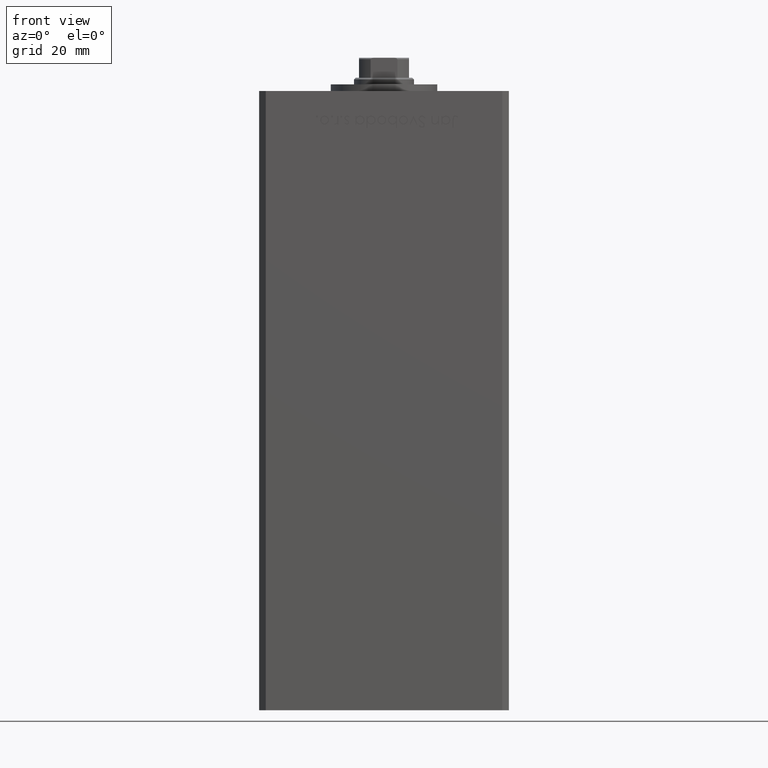
[diagram: clean part render]
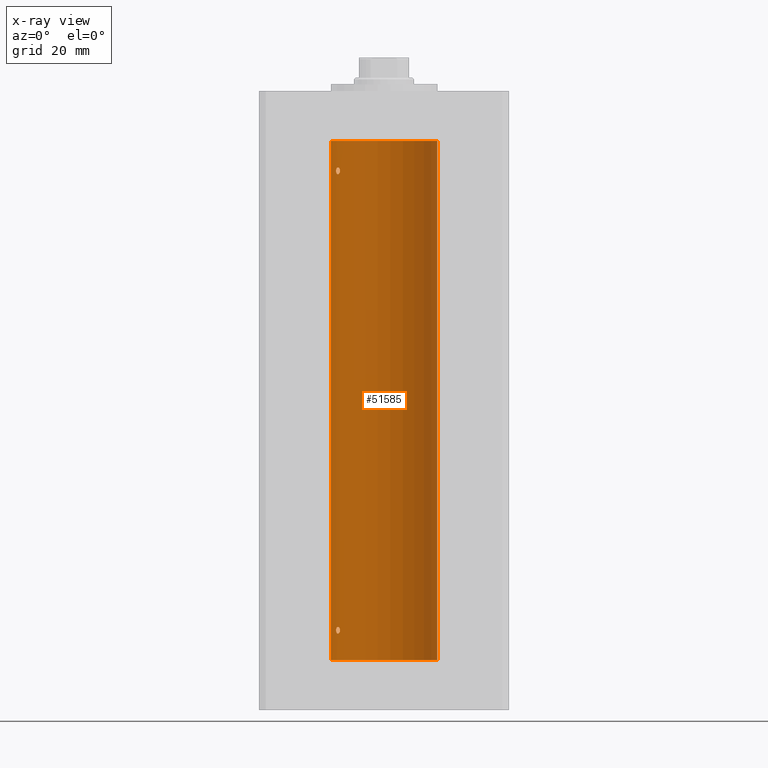
[diagram: x-ray — body ghosted, one internal face saturated and labeled with its STEP entity id]
A machine part, front view, then the same camera in x-ray: the body is ghosted and one INTERNAL B-rep face — a face not visible from any outside direction — is saturated and labeled: STEP entity #51585.
In plain terms, the highlighted cylindrical surface (partial cylindrical patch) has radius 16 mm, axis along (-0, -0, -1).
Its self-contained STEP definition (entity closure, byte-faithful):
#340 = CARTESIAN_POINT ( 'NONE',  ( -13.98699950016872151, 7.770591669637119558, 8.018476816648481886 ) ) ;
#353 = VERTEX_POINT ( 'NONE', #2799 ) ;
#684 = VERTEX_POINT ( 'NONE', #44339 ) ;
#802 = DIRECTION ( 'NONE',  ( -0.000000000000000000, -0.000000000000000000, -1.000000000000000000 ) ) ;
#826 = EDGE_CURVE ( 'NONE', #10309, #353, #33512, .T. ) ;
#871 = CARTESIAN_POINT ( 'NONE',  ( -14.38749456993815556, 6.999999999999997335, 8.857147409635411250 ) ) ;
#1015 = CARTESIAN_POINT ( 'NONE',  ( -14.31650799088418147, 7.144337649771908438, 147.5355226273736946 ) ) ;
#1268 = CARTESIAN_POINT ( 'NONE',  ( -13.70792461986390798, 8.256614593260307444, 147.9966215356423334 ) ) ;
#1714 = EDGE_CURVE ( 'NONE', #43256, #34754, #34140, .T. ) ;
#1774 = CARTESIAN_POINT ( 'NONE',  ( -13.32457971225032622, 8.857769707964648020, 147.5319996627465855 ) ) ;
#1960 = EDGE_LOOP ( 'NONE', ( #26765, #45407, #18020, #8762 ) ) ;
#2799 = CARTESIAN_POINT ( 'NONE',  ( 16.00000000000000000, 1.959434878635765131E-15, 0.000000000000000000 ) ) ;
#3520 = EDGE_LOOP ( 'NONE', ( #10348, #12182 ) ) ;
#3579 = CARTESIAN_POINT ( 'NONE',  ( -14.37227256866306213, 7.031482256185707769, 9.284457240976479397 ) ) ;
#3871 = CARTESIAN_POINT ( 'NONE',  ( -13.22875655532295802, 8.999999999999996447, 147.0000000000000284 ) ) ;
#4043 = CARTESIAN_POINT ( 'NONE',  ( -14.17528142432533755, 7.421143801852455368, 8.173943073538659121 ) ) ;
#4450 = DIRECTION ( 'NONE',  ( -1.000000000000000000, 0.000000000000000000, 0.000000000000000000 ) ) ;
#5997 = CARTESIAN_POINT ( 'NONE',  ( -13.24976519864029179, 8.969293778684573226, 147.2815352263351940 ) ) ;
#7533 = CARTESIAN_POINT ( 'NONE',  ( -14.11618354197461400, 7.533333301880478672, 9.893207651933416003 ) ) ;
#7803 = CARTESIAN_POINT ( 'NONE',  ( -13.91892506969882959, 7.891973478508852224, 10.00155212263243953 ) ) ;
#8762 = ORIENTED_EDGE ( 'NONE', *, *, #21016, .F. ) ;
#9819 = B_SPLINE_CURVE_WITH_KNOTS ( 'NONE', 3,
 ( #26329, #46110, #18935, #35024, #13683, #45859, #17904, #9974, #51331, #11791, #47401, #40001, #35545, #19187, #15229, #43977, #39477, #47138, #27356, #3871 ),
 .UNSPECIFIED., .F., .F.,
 ( 4, 2, 2, 2, 2, 2, 2, 2, 2, 4 ),
 ( 0.000000000000000000, 0.0004222090241339633240, 0.0008444180482679266480, 0.001266627072401889809, 0.001688836096535853296, 0.002111045120669816783, 0.002533254144803779619, 0.002955463168937742888, 0.003166567681004761603, 0.003377672193071779884 ),
 .UNSPECIFIED. ) ;
#9974 = CARTESIAN_POINT ( 'NONE',  ( -13.98699950016872151, 7.770591669637114229, 146.0184768166484446 ) ) ;
#10133 = EDGE_CURVE ( 'NONE', #34754, #43256, #12022, .T. ) ;
#10309 = VERTEX_POINT ( 'NONE', #18309 ) ;
#10348 = ORIENTED_EDGE ( 'NONE', *, *, #1714, .F. ) ;
#10655 = VECTOR ( 'NONE', #42851, 1000.000000000000000 ) ;
#10678 = CARTESIAN_POINT ( 'NONE',  ( -16.00000000000000000, 0.000000000000000000, 156.0000000000000000 ) ) ;
#11493 = CARTESIAN_POINT ( 'NONE',  ( -13.55800260393082546, 8.498809056167521803, 9.903643446210175227 ) ) ;
#11791 = CARTESIAN_POINT ( 'NONE',  ( -13.77582987033440709, 8.139210687602719929, 146.0021105458418447 ) ) ;
#11975 = CARTESIAN_POINT ( 'NONE',  ( -13.70481462797718031, 8.258098555717506173, 8.025997477291133109 ) ) ;
#12022 = B_SPLINE_CURVE_WITH_KNOTS ( 'NONE', 3,
 ( #23615, #27316, #15453, #32062, #23106, #11493, #31543, #7803, #27840, #7533, #12280, #39702, #48136, #3579, #19674, #35764 ),
 .UNSPECIFIED., .F., .F.,
 ( 4, 2, 2, 2, 2, 2, 2, 4 ),
 ( 0.003377672193071777282, 0.003799209865779874882, 0.004220747538487972482, 0.005063822883904168549, 0.005485360556612268318, 0.005906898229320367219, 0.006328435902028466120, 0.006749973574736565889 ),
 .UNSPECIFIED. ) ;
#12182 = ORIENTED_EDGE ( 'NONE', *, *, #10133, .F. ) ;
#12280 = CARTESIAN_POINT ( 'NONE',  ( -14.17576283486774535, 7.420212263225985261, 9.825253034304354927 ) ) ;
#12375 = FACE_BOUND ( 'NONE', #3520, .T. ) ;
#12379 = EDGE_CURVE ( 'NONE', #684, #18472, #14896, .T. ) ;
#12495 = CARTESIAN_POINT ( 'NONE',  ( -13.49759407097374897, 8.592283911330223845, 8.184099152127670251 ) ) ;
#13150 = CARTESIAN_POINT ( 'NONE',  ( -14.38749456993815912, 6.999999999999998224, 147.0000000000000284 ) ) ;
#13408 = CARTESIAN_POINT ( 'NONE',  ( -13.22875655532296157, 8.999999999999994671, 147.1406447609177803 ) ) ;
#13683 = CARTESIAN_POINT ( 'NONE',  ( -14.27547848986622370, 7.226527013162184154, 146.3525557301815354 ) ) ;
#13922 = CARTESIAN_POINT ( 'NONE',  ( -14.27521483392928836, 7.227035590538638310, 147.6478598706881940 ) ) ;
#14116 = EDGE_LOOP ( 'NONE', ( #41454, #46971 ) ) ;
#14896 = LINE ( 'NONE', #10678, #10655 ) ;
#15229 = CARTESIAN_POINT ( 'NONE',  ( -13.32426099938365383, 8.858246960865844954, 146.4688748775330112 ) ) ;
#15257 = CARTESIAN_POINT ( 'NONE',  ( -16.00000000000000000, 0.000000000000000000, 0.000000000000000000 ) ) ;
#15319 = AXIS2_PLACEMENT_3D ( 'NONE', #26801, #39188, #42117 ) ;
#15453 = CARTESIAN_POINT ( 'NONE',  ( -13.24976519864029179, 8.969293778684576779, 9.281535226335156707 ) ) ;
#16170 = CARTESIAN_POINT ( 'NONE',  ( -14.38749456993815912, 6.999999999999998224, 147.0000000000000284 ) ) ;
#16244 = AXIS2_PLACEMENT_3D ( 'NONE', #47455, #40588, #4450 ) ;
#16455 = CARTESIAN_POINT ( 'NONE',  ( -13.77582987033441064, 8.139210687602712824, 8.002110545841816247 ) ) ;
#16720 = CARTESIAN_POINT ( 'NONE',  ( -14.37250282441143767, 7.031013007322936659, 8.716856996037261496 ) ) ;
#17253 = CARTESIAN_POINT ( 'NONE',  ( -13.23400746336172951, 8.992294519018086518, 8.857814559023015732 ) ) ;
#17374 = CARTESIAN_POINT ( 'NONE',  ( -14.17576283486774891, 7.420212263225987925, 147.8252530343044100 ) ) ;
#17624 = CARTESIAN_POINT ( 'NONE',  ( -14.38749456993815734, 6.999999999999997335, 147.1426254415242738 ) ) ;
#17904 = CARTESIAN_POINT ( 'NONE',  ( -14.11621438951177687, 7.533308783217008475, 146.1065710718395110 ) ) ;
#18020 = ORIENTED_EDGE ( 'NONE', *, *, #12379, .T. ) ;
#18309 = CARTESIAN_POINT ( 'NONE',  ( 16.00000000000000000, 1.959434878635765131E-15, 156.0000000000000000 ) ) ;
#18472 = VERTEX_POINT ( 'NONE', #15257 ) ;
#18662 = CIRCLE ( 'NONE', #15319, 16.00000000000000000 ) ;
#18731 = CARTESIAN_POINT ( 'NONE',  ( -13.22875655532295092, 8.999999999999994671, 8.929565622361636201 ) ) ;
#18935 = CARTESIAN_POINT ( 'NONE',  ( -14.37250282441143945, 7.031013007322939323, 146.7168569960373077 ) ) ;
#18979 = CARTESIAN_POINT ( 'NONE',  ( -13.22875655532295447, 8.999999999999996447, 9.000000000000000000 ) ) ;
#19157 = AXIS2_PLACEMENT_3D ( 'NONE', #30969, #22797, #34935 ) ;
#19187 = CARTESIAN_POINT ( 'NONE',  ( -13.37674940693422876, 8.779234808442867077, 146.3602441571267718 ) ) ;
#19674 = CARTESIAN_POINT ( 'NONE',  ( -14.38749456993816445, 6.999999999999997335, 9.142625441524202756 ) ) ;
#20417 = CARTESIAN_POINT ( 'NONE',  ( -14.38749456993815912, 6.999999999999997335, 9.000000000000000000 ) ) ;
#20871 = CIRCLE ( 'NONE', #19157, 16.00000000000000000 ) ;
#21016 = EDGE_CURVE ( 'NONE', #353, #18472, #20871, .T. ) ;
#22797 = DIRECTION ( 'NONE',  ( -0.000000000000000000, 0.000000000000000000, 1.000000000000000000 ) ) ;
#23106 = CARTESIAN_POINT ( 'NONE',  ( -13.37741691572085934, 8.778212469423014142, 9.640882860227099727 ) ) ;
#23155 = CARTESIAN_POINT ( 'NONE',  ( -14.38749456993815912, 6.999999999999997335, 9.000000000000000000 ) ) ;
#23615 = CARTESIAN_POINT ( 'NONE',  ( -13.22875655532295447, 8.999999999999996447, 9.000000000000000000 ) ) ;
#23838 = CARTESIAN_POINT ( 'NONE',  ( -14.11621438951177332, 7.533308783217010252, 8.106571071839512754 ) ) ;
#24193 = VERTEX_POINT ( 'NONE', #28371 ) ;
#24288 = B_SPLINE_CURVE_WITH_KNOTS ( 'NONE', 3,
 ( #26308, #13408, #5997, #1774, #37421, #33970, #1268, #38176, #49267, #37664, #17374, #13922, #1015, #29497, #17624, #13150 ),
 .UNSPECIFIED., .F., .F.,
 ( 4, 2, 2, 2, 2, 2, 2, 4 ),
 ( 0.003377672193071779884, 0.003799209865779855366, 0.004220747538487930849, 0.005063822883904134722, 0.005485360556612237093, 0.005906898229320339463, 0.006328435902028442701, 0.006749973574736545072 ),
 .UNSPECIFIED. ) ;
#24488 = FACE_BOUND ( 'NONE', #14116, .T. ) ;
#26308 = CARTESIAN_POINT ( 'NONE',  ( -13.22875655532295802, 8.999999999999996447, 147.0000000000000284 ) ) ;
#26329 = CARTESIAN_POINT ( 'NONE',  ( -14.38749456993815912, 6.999999999999998224, 147.0000000000000284 ) ) ;
#26765 = ORIENTED_EDGE ( 'NONE', *, *, #826, .F. ) ;
#26801 = CARTESIAN_POINT ( 'NONE',  ( 0.000000000000000000, 0.000000000000000000, 156.0000000000000000 ) ) ;
#27316 = CARTESIAN_POINT ( 'NONE',  ( -13.22875655532295447, 8.999999999999996447, 9.140644760917734146 ) ) ;
#27356 = CARTESIAN_POINT ( 'NONE',  ( -13.22875655532295625, 8.999999999999994671, 146.9295656223616504 ) ) ;
#27840 = CARTESIAN_POINT ( 'NONE',  ( -13.98878315975729159, 7.767347947480346626, 9.980546143261280534 ) ) ;
#28065 = CARTESIAN_POINT ( 'NONE',  ( -13.56386909142669950, 8.487613976483636691, 8.118224297996075478 ) ) ;
#28371 = CARTESIAN_POINT ( 'NONE',  ( -13.22875655532295802, 8.999999999999996447, 147.0000000000000284 ) ) ;
#28581 = CARTESIAN_POINT ( 'NONE',  ( -13.37674940693422521, 8.779234808442870630, 8.360244157126784259 ) ) ;
#29497 = CARTESIAN_POINT ( 'NONE',  ( -14.37227256866306213, 7.031482256185711321, 147.2844572409765078 ) ) ;
#30618 = EDGE_CURVE ( 'NONE', #24193, #40260, #24288, .T. ) ;
#30969 = CARTESIAN_POINT ( 'NONE',  ( 0.000000000000000000, 0.000000000000000000, 0.000000000000000000 ) ) ;
#31082 = VECTOR ( 'NONE', #802, 1000.000000000000000 ) ;
#31543 = CARTESIAN_POINT ( 'NONE',  ( -13.70792461986390620, 8.256614593260307444, 9.996621535642271184 ) ) ;
#32014 = CARTESIAN_POINT ( 'NONE',  ( -14.31660136508399184, 7.144151923086058176, 8.464621795444474017 ) ) ;
#32062 = CARTESIAN_POINT ( 'NONE',  ( -13.32457971225032445, 8.857769707964649797, 9.531999662746555302 ) ) ;
#33512 = LINE ( 'NONE', #49574, #31082 ) ;
#33970 = CARTESIAN_POINT ( 'NONE',  ( -13.55800260393081835, 8.498809056167509368, 147.9036434462101397 ) ) ;
#34140 = B_SPLINE_CURVE_WITH_KNOTS ( 'NONE', 3,
 ( #20417, #871, #16720, #32014, #40178, #4043, #23838, #340, #39915, #16455, #11975, #28065, #12495, #28581, #44148, #44669, #49394, #17253, #18731, #18979 ),
 .UNSPECIFIED., .F., .F.,
 ( 4, 2, 2, 2, 2, 2, 2, 2, 2, 4 ),
 ( 0.000000000000000000, 0.0004222090241339719976, 0.0008444180482679439952, 0.001266627072401915830, 0.001688836096535887990, 0.002111045120669860151, 0.002533254144803831660, 0.002955463168937803604, 0.003166567681004790660, 0.003377672193071777282 ),
 .UNSPECIFIED. ) ;
#34563 = CARTESIAN_POINT ( 'NONE',  ( -13.22875655532295447, 8.999999999999996447, 9.000000000000000000 ) ) ;
#34754 = VERTEX_POINT ( 'NONE', #34563 ) ;
#34935 = DIRECTION ( 'NONE',  ( 1.000000000000000000, 0.000000000000000000, 0.000000000000000000 ) ) ;
#35024 = CARTESIAN_POINT ( 'NONE',  ( -14.31660136508398828, 7.144151923086063505, 146.4646217954444865 ) ) ;
#35545 = CARTESIAN_POINT ( 'NONE',  ( -13.49759407097375075, 8.592283911330223845, 146.1840991521277147 ) ) ;
#35764 = CARTESIAN_POINT ( 'NONE',  ( -14.38749456993815912, 6.999999999999997335, 9.000000000000000000 ) ) ;
#37421 = CARTESIAN_POINT ( 'NONE',  ( -13.37741691572086111, 8.778212469423007036, 147.6408828602271512 ) ) ;
#37664 = CARTESIAN_POINT ( 'NONE',  ( -14.11618354197461400, 7.533333301880474231, 147.8932076519334373 ) ) ;
#37909 = EDGE_CURVE ( 'NONE', #10309, #684, #18662, .T. ) ;
#38176 = CARTESIAN_POINT ( 'NONE',  ( -13.91892506969882071, 7.891973478508848672, 148.0015521226324040 ) ) ;
#39188 = DIRECTION ( 'NONE',  ( -0.000000000000000000, 0.000000000000000000, 1.000000000000000000 ) ) ;
#39477 = CARTESIAN_POINT ( 'NONE',  ( -13.25390108270225120, 8.962947079338391632, 146.7214357623584533 ) ) ;
#39702 = CARTESIAN_POINT ( 'NONE',  ( -14.27521483392929014, 7.227035590538633869, 9.647859870688195727 ) ) ;
#39915 = CARTESIAN_POINT ( 'NONE',  ( -13.91838063522420832, 7.892966471903941184, 7.998148313308679036 ) ) ;
#40001 = CARTESIAN_POINT ( 'NONE',  ( -13.56386909142669772, 8.487613976483636691, 146.1182242979961359 ) ) ;
#40178 = CARTESIAN_POINT ( 'NONE',  ( -14.27547848986622014, 7.226527013162185931, 8.352555730181528304 ) ) ;
#40260 = VERTEX_POINT ( 'NONE', #16170 ) ;
#40588 = DIRECTION ( 'NONE',  ( -0.000000000000000000, -0.000000000000000000, -1.000000000000000000 ) ) ;
#41454 = ORIENTED_EDGE ( 'NONE', *, *, #46455, .F. ) ;
#42117 = DIRECTION ( 'NONE',  ( 1.000000000000000000, 0.000000000000000000, 0.000000000000000000 ) ) ;
#42851 = DIRECTION ( 'NONE',  ( -0.000000000000000000, -0.000000000000000000, -1.000000000000000000 ) ) ;
#43256 = VERTEX_POINT ( 'NONE', #23155 ) ;
#43977 = CARTESIAN_POINT ( 'NONE',  ( -13.26838749541400908, 8.941532915076043864, 146.6562177939213711 ) ) ;
#44148 = CARTESIAN_POINT ( 'NONE',  ( -13.32426099938365027, 8.858246960865852060, 8.468874877532968526 ) ) ;
#44339 = CARTESIAN_POINT ( 'NONE',  ( -16.00000000000000000, 0.000000000000000000, 156.0000000000000000 ) ) ;
#44549 = CYLINDRICAL_SURFACE ( 'NONE', #16244, 16.00000000000000000 ) ;
#44669 = CARTESIAN_POINT ( 'NONE',  ( -13.26838749541400198, 8.941532915076040311, 8.656217793921369363 ) ) ;
#45407 = ORIENTED_EDGE ( 'NONE', *, *, #37909, .T. ) ;
#45859 = CARTESIAN_POINT ( 'NONE',  ( -14.17528142432533755, 7.421143801852455368, 146.1739430735387089 ) ) ;
#46110 = CARTESIAN_POINT ( 'NONE',  ( -14.38749456993816267, 6.999999999999999112, 146.8571474096354450 ) ) ;
#46455 = EDGE_CURVE ( 'NONE', #40260, #24193, #9819, .T. ) ;
#46971 = ORIENTED_EDGE ( 'NONE', *, *, #30618, .F. ) ;
#47138 = CARTESIAN_POINT ( 'NONE',  ( -13.23400746336172240, 8.992294519018086518, 146.8578145590230406 ) ) ;
#47401 = CARTESIAN_POINT ( 'NONE',  ( -13.70481462797717676, 8.258098555717509726, 146.0259974772911562 ) ) ;
#47455 = CARTESIAN_POINT ( 'NONE',  ( 0.000000000000000000, 0.000000000000000000, 156.0000000000000000 ) ) ;
#48136 = CARTESIAN_POINT ( 'NONE',  ( -14.31650799088418324, 7.144337649771912879, 9.535522627373689275 ) ) ;
#48485 = FACE_OUTER_BOUND ( 'NONE', #1960, .T. ) ;
#49267 = CARTESIAN_POINT ( 'NONE',  ( -13.98878315975728803, 7.767347947480344850, 147.9805461432612788 ) ) ;
#49394 = CARTESIAN_POINT ( 'NONE',  ( -13.25390108270225298, 8.962947079338388079, 8.721435762358455079 ) ) ;
#49574 = CARTESIAN_POINT ( 'NONE',  ( 16.00000000000000000, 1.959434878635765131E-15, 156.0000000000000000 ) ) ;
#51331 = CARTESIAN_POINT ( 'NONE',  ( -13.91838063522421010, 7.892966471903945624, 145.9981483133087465 ) ) ;
#51585 = ADVANCED_FACE ( 'NONE', ( #48485, #12375, #24488 ), #44549, .F. ) ;